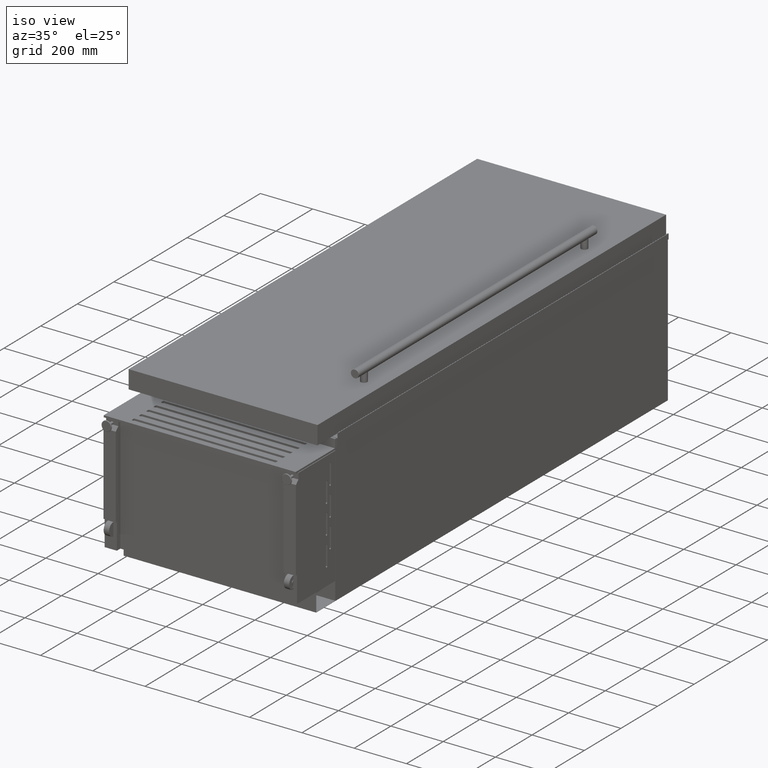
[diagram: clean part render]
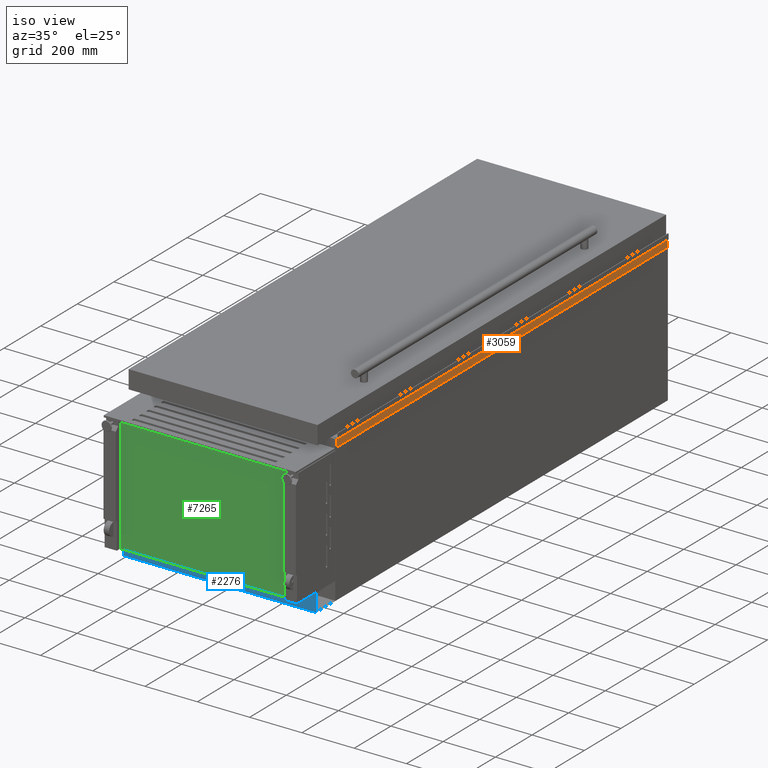
[diagram: same view with three faces highlighted in distinct colors, each labeled with its STEP entity id]
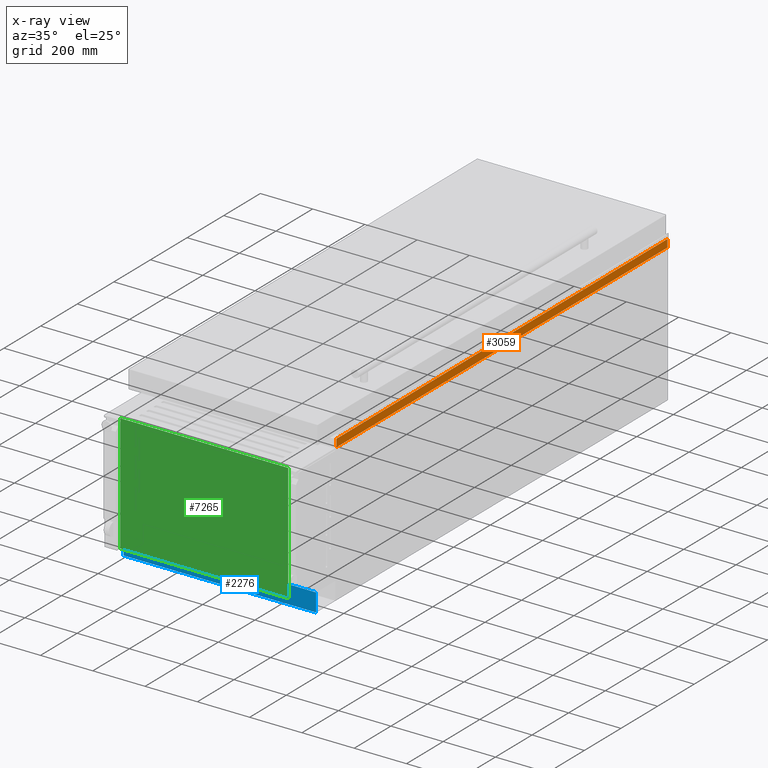
[diagram: x-ray of the same camera — body ghosted, the three highlighted faces saturated]
A machine part, iso view with three faces highlighted in distinct colors.
The next image is the same camera in x-ray (body ghosted, the three faces saturated) — at least one of them is partly hidden behind the body in this view.
Their STEP definitions:

[orange] entity #3059 — the highlighted planar face has unit normal (-1, 0, 0).
#234 = CARTESIAN_POINT ( 'NONE',  ( 369.4999998500005100, 1010.850000000000000, 279.5000000500002700 ) ) ;
#627 = ORIENTED_EDGE ( 'NONE', *, *, #1700, .T. ) ;
#889 = DIRECTION ( 'NONE',  ( 0.0000000000000000000, 0.0000000000000000000, -1.000000000000000000 ) ) ;
#1307 = VERTEX_POINT ( 'NONE', #10122 ) ;
#1427 = ORIENTED_EDGE ( 'NONE', *, *, #9972, .F. ) ;
#1700 = EDGE_CURVE ( 'NONE', #3321, #1307, #6011, .T. ) ;
#2213 = DIRECTION ( 'NONE',  ( 0.0000000000000000000, 0.0000000000000000000, 1.000000000000000000 ) ) ;
#2522 = CARTESIAN_POINT ( 'NONE',  ( 369.4999998500005100, 1065.901327281558700, 279.5000000500002700 ) ) ;
#2568 = CARTESIAN_POINT ( 'NONE',  ( 369.4999998500005100, -796.1499999999997500, 279.5000000500004400 ) ) ;
#2884 = EDGE_CURVE ( 'NONE', #7467, #3321, #8829, .T. ) ;
#3059 = ADVANCED_FACE ( 'NONE', ( #10363 ), #8950, .F. ) ;
#3102 = VECTOR ( 'NONE', #5822, 1000.000000000000000 ) ;
#3321 = VERTEX_POINT ( 'NONE', #234 ) ;
#3512 = DIRECTION ( 'NONE',  ( 0.0000000000000000000, -2.775557561562891400E-015, 1.000000000000000000 ) ) ;
#3647 = ORIENTED_EDGE ( 'NONE', *, *, #2884, .T. ) ;
#3664 = LINE ( 'NONE', #2568, #5305 ) ;
#3736 = VECTOR ( 'NONE', #9144, 1000.000000000000000 ) ;
#4245 = EDGE_CURVE ( 'NONE', #8037, #1307, #3664, .T. ) ;
#4383 = CARTESIAN_POINT ( 'NONE',  ( 369.4999998500005100, 1065.901327281558700, 279.5000000500002700 ) ) ;
#4990 = LINE ( 'NONE', #8975, #3102 ) ;
#5305 = VECTOR ( 'NONE', #3512, 1000.000000000000000 ) ;
#5467 = AXIS2_PLACEMENT_3D ( 'NONE', #2522, #8119, #889 ) ;
#5472 = EDGE_LOOP ( 'NONE', ( #3647, #627, #7353, #1427 ) ) ;
#5822 = DIRECTION ( 'NONE',  ( 0.0000000000000000000, -1.000000000000000000, -0.0000000000000000000 ) ) ;
#6011 = LINE ( 'NONE', #4383, #3736 ) ;
#6179 = CARTESIAN_POINT ( 'NONE',  ( 369.4999998500005100, 1010.850000000000000, 250.0000030000001900 ) ) ;
#7353 = ORIENTED_EDGE ( 'NONE', *, *, #4245, .F. ) ;
#7467 = VERTEX_POINT ( 'NONE', #6179 ) ;
#7866 = CARTESIAN_POINT ( 'NONE',  ( 369.4999998500005100, 1010.850000000000000, 279.5000000500002700 ) ) ;
#8037 = VERTEX_POINT ( 'NONE', #8724 ) ;
#8119 = DIRECTION ( 'NONE',  ( -1.000000000000000000, 0.0000000000000000000, 0.0000000000000000000 ) ) ;
#8724 = CARTESIAN_POINT ( 'NONE',  ( 369.4999998500005100, -796.1499999999996400, 250.0000030000001900 ) ) ;
#8829 = LINE ( 'NONE', #7866, #9087 ) ;
#8950 = PLANE ( 'NONE',  #5467 ) ;
#8975 = CARTESIAN_POINT ( 'NONE',  ( 369.4999998500005100, 1065.901327281558700, 250.0000030000001900 ) ) ;
#9087 = VECTOR ( 'NONE', #2213, 1000.000000000000000 ) ;
#9144 = DIRECTION ( 'NONE',  ( 0.0000000000000000000, -1.000000000000000000, -0.0000000000000000000 ) ) ;
#9972 = EDGE_CURVE ( 'NONE', #7467, #8037, #4990, .T. ) ;
#10122 = CARTESIAN_POINT ( 'NONE',  ( 369.4999998500005100, -796.1499999999997500, 279.5000000500002700 ) ) ;
#10363 = FACE_OUTER_BOUND ( 'NONE', #5472, .T. ) ;

[blue] entity #2276 — the highlighted planar face has unit normal (0, 1, 0).
#27 = LINE ( 'NONE', #8518, #1284 ) ;
#39 = VECTOR ( 'NONE', #5525, 1000.000000000000000 ) ;
#69 = CARTESIAN_POINT ( 'NONE',  ( 368.0000000000000000, -905.6000000000001400, -210.3999999999998400 ) ) ;
#152 = EDGE_CURVE ( 'NONE', #2477, #5794, #1655, .T. ) ;
#389 = VECTOR ( 'NONE', #8800, 1000.000000000000000 ) ;
#833 = AXIS2_PLACEMENT_3D ( 'NONE', #8098, #3296, #5876 ) ;
#1284 = VECTOR ( 'NONE', #3864, 1000.000000000000000 ) ;
#1655 = LINE ( 'NONE', #7138, #389 ) ;
#2224 = VERTEX_POINT ( 'NONE', #4755 ) ;
#2276 = ADVANCED_FACE ( 'NONE', ( #8844 ), #7307, .F. ) ;
#2477 = VERTEX_POINT ( 'NONE', #4568 ) ;
#2560 = CARTESIAN_POINT ( 'NONE',  ( 368.0000000000000000, -905.6000000000001400, -280.0000000000001100 ) ) ;
#3113 = ORIENTED_EDGE ( 'NONE', *, *, #152, .F. ) ;
#3296 = DIRECTION ( 'NONE',  ( 0.0000000000000000000, 1.000000000000000000, 0.0000000000000000000 ) ) ;
#3864 = DIRECTION ( 'NONE',  ( 0.0000000000000000000, -0.0000000000000000000, -1.000000000000000000 ) ) ;
#4509 = CARTESIAN_POINT ( 'NONE',  ( -368.0000000000000000, -905.6000000000001400, -280.0000000000001100 ) ) ;
#4551 = DIRECTION ( 'NONE',  ( 1.000000000000000000, -0.0000000000000000000, -0.0000000000000000000 ) ) ;
#4568 = CARTESIAN_POINT ( 'NONE',  ( -368.0000000000000000, -905.6000000000001400, -210.3999999999998400 ) ) ;
#4755 = CARTESIAN_POINT ( 'NONE',  ( -368.0000000000000000, -905.6000000000001400, -280.0000000000001100 ) ) ;
#5245 = ORIENTED_EDGE ( 'NONE', *, *, #8541, .T. ) ;
#5506 = VECTOR ( 'NONE', #4551, 1000.000000000000000 ) ;
#5525 = DIRECTION ( 'NONE',  ( 0.0000000000000000000, -0.0000000000000000000, -1.000000000000000000 ) ) ;
#5563 = CARTESIAN_POINT ( 'NONE',  ( 368.0000000000000000, -905.6000000000001400, -280.0000000000001100 ) ) ;
#5794 = VERTEX_POINT ( 'NONE', #69 ) ;
#5876 = DIRECTION ( 'NONE',  ( 0.0000000000000000000, 0.0000000000000000000, 1.000000000000000000 ) ) ;
#5929 = LINE ( 'NONE', #5563, #39 ) ;
#6157 = ORIENTED_EDGE ( 'NONE', *, *, #9666, .T. ) ;
#7121 = VERTEX_POINT ( 'NONE', #2560 ) ;
#7138 = CARTESIAN_POINT ( 'NONE',  ( -368.0000000000000000, -905.6000000000001400, -210.3999999999998400 ) ) ;
#7307 = PLANE ( 'NONE',  #833 ) ;
#8024 = EDGE_CURVE ( 'NONE', #5794, #7121, #5929, .T. ) ;
#8098 = CARTESIAN_POINT ( 'NONE',  ( -368.0000000000000000, -905.6000000000001400, -280.0000000000001100 ) ) ;
#8296 = EDGE_LOOP ( 'NONE', ( #3113, #5245, #6157, #8445 ) ) ;
#8445 = ORIENTED_EDGE ( 'NONE', *, *, #8024, .F. ) ;
#8518 = CARTESIAN_POINT ( 'NONE',  ( -368.0000000000000000, -905.6000000000001400, -280.0000000000001100 ) ) ;
#8541 = EDGE_CURVE ( 'NONE', #2477, #2224, #27, .T. ) ;
#8800 = DIRECTION ( 'NONE',  ( 1.000000000000000000, -0.0000000000000000000, -0.0000000000000000000 ) ) ;
#8844 = FACE_OUTER_BOUND ( 'NONE', #8296, .T. ) ;
#9250 = LINE ( 'NONE', #4509, #5506 ) ;
#9666 = EDGE_CURVE ( 'NONE', #2224, #7121, #9250, .T. ) ;

[green] entity #7265 — the highlighted planar face has unit normal (0, 1, 0).
#254 = FACE_OUTER_BOUND ( 'NONE', #7518, .T. ) ;
#422 = EDGE_CURVE ( 'NONE', #3457, #9233, #7287, .T. ) ;
#1477 = CARTESIAN_POINT ( 'NONE',  ( -321.0000000000000000, -990.8500000000000200, -210.3999999999998400 ) ) ;
#1578 = EDGE_CURVE ( 'NONE', #8076, #8205, #7020, .T. ) ;
#1962 = DIRECTION ( 'NONE',  ( 0.0000000000000000000, 0.0000000000000000000, 1.000000000000000000 ) ) ;
#2017 = CARTESIAN_POINT ( 'NONE',  ( 320.9999999999999400, -990.8500000000000200, 240.0000000000001400 ) ) ;
#2722 = CARTESIAN_POINT ( 'NONE',  ( -321.0000000000000000, -990.8500000000000200, -280.0000000000001100 ) ) ;
#3344 = CARTESIAN_POINT ( 'NONE',  ( 320.9999999999999400, -990.8500000000000200, -280.0000000000001100 ) ) ;
#3439 = VECTOR ( 'NONE', #1962, 1000.000000000000000 ) ;
#3457 = VERTEX_POINT ( 'NONE', #4117 ) ;
#3564 = EDGE_CURVE ( 'NONE', #8076, #3457, #5456, .T. ) ;
#3579 = DIRECTION ( 'NONE',  ( 1.000000000000000000, -0.0000000000000000000, -0.0000000000000000000 ) ) ;
#3816 = CARTESIAN_POINT ( 'NONE',  ( 320.9999999999999400, -990.8500000000000200, 240.0000000000001400 ) ) ;
#4117 = CARTESIAN_POINT ( 'NONE',  ( -321.0000000000000000, -990.8500000000000200, 240.0000000000001400 ) ) ;
#4548 = LINE ( 'NONE', #3344, #10321 ) ;
#4965 = CARTESIAN_POINT ( 'NONE',  ( 368.0000000000000000, -990.8500000000000200, -210.3999999999998400 ) ) ;
#5320 = EDGE_CURVE ( 'NONE', #8205, #9233, #4548, .T. ) ;
#5456 = LINE ( 'NONE', #2722, #3439 ) ;
#5797 = ORIENTED_EDGE ( 'NONE', *, *, #3564, .F. ) ;
#6545 = CARTESIAN_POINT ( 'NONE',  ( 320.9999999999999400, -990.8500000000000200, -210.3999999999998400 ) ) ;
#6708 = DIRECTION ( 'NONE',  ( 0.0000000000000000000, 0.0000000000000000000, 1.000000000000000000 ) ) ;
#6741 = PLANE ( 'NONE',  #7440 ) ;
#6765 = VECTOR ( 'NONE', #7272, 1000.000000000000000 ) ;
#7020 = LINE ( 'NONE', #4965, #6765 ) ;
#7042 = VECTOR ( 'NONE', #3579, 1000.000000000000000 ) ;
#7265 = ADVANCED_FACE ( 'NONE', ( #254 ), #6741, .F. ) ;
#7272 = DIRECTION ( 'NONE',  ( 1.000000000000000000, 0.0000000000000000000, 0.0000000000000000000 ) ) ;
#7287 = LINE ( 'NONE', #2017, #7042 ) ;
#7310 = ORIENTED_EDGE ( 'NONE', *, *, #5320, .T. ) ;
#7440 = AXIS2_PLACEMENT_3D ( 'NONE', #8301, #9963, #6708 ) ;
#7518 = EDGE_LOOP ( 'NONE', ( #5797, #8508, #7310, #10143 ) ) ;
#8076 = VERTEX_POINT ( 'NONE', #1477 ) ;
#8205 = VERTEX_POINT ( 'NONE', #6545 ) ;
#8301 = CARTESIAN_POINT ( 'NONE',  ( 320.9999999999999400, -990.8500000000000200, -280.0000000000001100 ) ) ;
#8508 = ORIENTED_EDGE ( 'NONE', *, *, #1578, .T. ) ;
#9233 = VERTEX_POINT ( 'NONE', #3816 ) ;
#9595 = DIRECTION ( 'NONE',  ( 0.0000000000000000000, 0.0000000000000000000, 1.000000000000000000 ) ) ;
#9963 = DIRECTION ( 'NONE',  ( 0.0000000000000000000, 1.000000000000000000, 0.0000000000000000000 ) ) ;
#10143 = ORIENTED_EDGE ( 'NONE', *, *, #422, .F. ) ;
#10321 = VECTOR ( 'NONE', #9595, 1000.000000000000000 ) ;